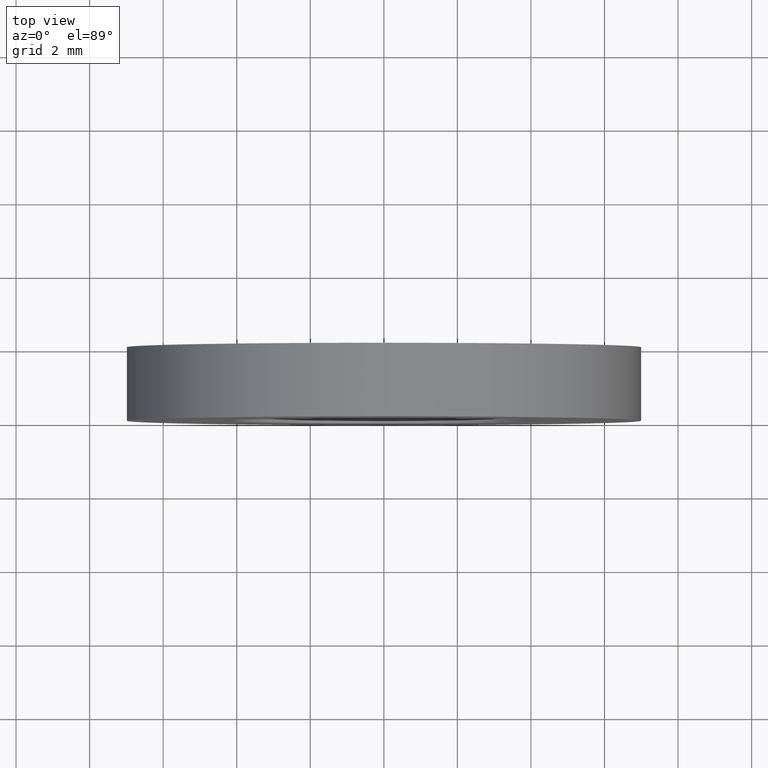
[diagram: clean part render]
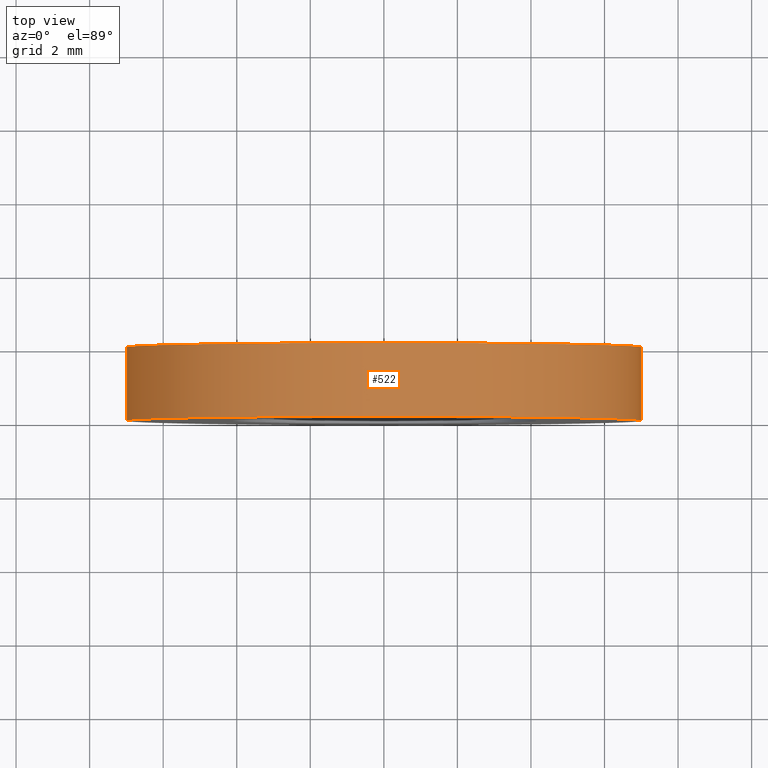
[diagram: same view with one face highlighted and labeled with its STEP entity id]
A machine part, top view. The second image highlights one B-rep face of the part: STEP entity #522.
In plain terms, the highlighted face is a freeform B-spline surface patch.
Its self-contained STEP definition (entity closure, byte-faithful):
#420=CARTESIAN_POINT('',(6.951066684545665,0.050000000000000,-0.826239642597310));
#421=CARTESIAN_POINT('',(6.974713308140240,0.050000000000000,-0.627303100465844));
#422=CARTESIAN_POINT('',(6.986943588953067,0.050000000000000,-0.427339776743999));
#423=CARTESIAN_POINT('',(7.414283365697066,0.050000000000000,6.559603812209068));
#424=CARTESIAN_POINT('',(0.427339776743999,0.050000000000000,6.986943588953067));
#425=CARTESIAN_POINT('',(-6.559603812209068,0.050000000000000,7.414283365697066));
#426=CARTESIAN_POINT('',(-6.986943588953067,0.050000000000000,0.427339776743999));
#427=CARTESIAN_POINT('',(6.951066684545665,-2.051250000000001,-0.826239642597310));
#428=CARTESIAN_POINT('',(6.974713308140240,-2.051250000000000,-0.627303100465844));
#429=CARTESIAN_POINT('',(6.986943588953067,-2.051250000000000,-0.427339776743999));
#430=CARTESIAN_POINT('',(7.414283365697066,-2.051250000000001,6.559603812209068));
#431=CARTESIAN_POINT('',(0.427339776743999,-2.051250000000000,6.986943588953067));
#432=CARTESIAN_POINT('',(-6.559603812209068,-2.051250000000001,7.414283365697066));
#433=CARTESIAN_POINT('',(-6.986943588953067,-2.051250000000000,0.427339776743999));
#441=(BOUNDED_SURFACE()B_SPLINE_SURFACE(2,1,((#420,#427),(#421,#428),(#422,#429),(#423,#430),(#424,#431),(#425,#432),(#426,#433)),.UNSPECIFIED.,.F.,.F.,.U.)B_SPLINE_SURFACE_WITH_KNOTS((3,2,2,3),(2,2),(0.0,0.463919189857867,12.061898936304530,23.659878682751181),(0.0,2.101250000000000),.UNSPECIFIED.)GEOMETRIC_REPRESENTATION_ITEM()RATIONAL_B_SPLINE_SURFACE(((0.977505800795127,0.977505800795127),(0.988284271247462,0.988284271247462),(1.0,1.0),(0.707106781186548,0.707106781186548),(1.0,1.0),(0.707106781186548,0.707106781186548),(1.0,1.0)))REPRESENTATION_ITEM('')SURFACE());
#442=CARTESIAN_POINT('',(6.951067210534475,-2.395768E-014,-0.826235217485072));
#443=VERTEX_POINT('',#442);
#444=CARTESIAN_POINT('',(0.0,0.0,7.0));
#445=VERTEX_POINT('',#444);
#446=CARTESIAN_POINT('',(6.951067210534475,-2.395768E-014,-0.826235217485072));
#447=CARTESIAN_POINT('',(7.0,0.0,-0.414566601616603));
#448=CARTESIAN_POINT('',(7.0,0.0,-2.795203E-016));
#449=CARTESIAN_POINT('',(6.999999999999999,0.0,6.999999999999999));
#450=CARTESIAN_POINT('',(0.0,0.0,7.0));
#458=(BOUNDED_CURVE()B_SPLINE_CURVE(2,(#446,#447,#448,#449,#450),.UNSPECIFIED.,.F.,.U.)B_SPLINE_CURVE_WITH_KNOTS((3,2,3),(0.229562581104653,0.250000000000000,0.500000000000000),.UNSPECIFIED.)CURVE()GEOMETRIC_REPRESENTATION_ITEM()RATIONAL_B_SPLINE_CURVE((0.956026965066855,0.976056074382012,1.0,0.707106781186547,1.0))REPRESENTATION_ITEM(''));
#459=EDGE_CURVE('',#443,#445,#458,.T.);
#460=ORIENTED_EDGE('',*,*,#459,.T.);
#461=CARTESIAN_POINT('',(-6.986943741830073,-1.567496E-014,0.427337277212387));
#462=VERTEX_POINT('',#461);
#463=CARTESIAN_POINT('',(0.0,0.0,7.0));
#464=CARTESIAN_POINT('',(-6.584944828460751,0.0,6.999999999999998));
#465=CARTESIAN_POINT('',(-6.986943741830074,-1.567496E-014,0.427337277212387));
#473=(BOUNDED_CURVE()B_SPLINE_CURVE(2,(#463,#464,#465),.UNSPECIFIED.,.F.,.U.)B_SPLINE_CURVE_WITH_KNOTS((3,3),(0.500000000000000,0.739333023969413),.UNSPECIFIED.)CURVE()GEOMETRIC_REPRESENTATION_ITEM()RATIONAL_B_SPLINE_CURVE((1.0,0.719603920964966,0.976072173966902))REPRESENTATION_ITEM(''));
#474=EDGE_CURVE('',#445,#462,#473,.T.);
#475=ORIENTED_EDGE('',*,*,#474,.T.);
#476=CARTESIAN_POINT('',(-6.986943739989564,-2.0,0.427337307304794));
#477=VERTEX_POINT('',#476);
#478=CARTESIAN_POINT('',(-6.986943741830073,-1.567496E-014,0.427337277212387));
#479=CARTESIAN_POINT('',(-6.986943739989564,-2.0,0.427337307304794));
#480=QUASI_UNIFORM_CURVE('',1,(#478,#479),.UNSPECIFIED.,.F.,.U.);
#481=EDGE_CURVE('',#462,#477,#480,.T.);
#482=ORIENTED_EDGE('',*,*,#481,.T.);
#483=CARTESIAN_POINT('',(0.0,-2.0,7.0));
#484=VERTEX_POINT('',#483);
#485=CARTESIAN_POINT('',(0.0,-2.0,7.0));
#486=CARTESIAN_POINT('',(-6.584944800046739,-2.0,6.999999999999999));
#487=CARTESIAN_POINT('',(-6.986943739989564,-2.0,0.427337307304794));
#495=(BOUNDED_CURVE()B_SPLINE_CURVE(2,(#485,#486,#487),.UNSPECIFIED.,.F.,.U.)B_SPLINE_CURVE_WITH_KNOTS((3,3),(0.500000000000000,0.739333023226263),.UNSPECIFIED.)CURVE()GEOMETRIC_REPRESENTATION_ITEM()RATIONAL_B_SPLINE_CURVE((1.0,0.719603921835620,0.976072172374189))REPRESENTATION_ITEM(''));
#496=EDGE_CURVE('',#484,#477,#495,.T.);
#497=ORIENTED_EDGE('',*,*,#496,.F.);
#498=CARTESIAN_POINT('',(6.951067204199181,-2.0,-0.826235270783800));
#499=VERTEX_POINT('',#498);
#500=CARTESIAN_POINT('',(6.951067204199181,-2.000000000000000,-0.826235270783800));
#501=CARTESIAN_POINT('',(7.0,-2.000000000000000,-0.414566628547696));
#502=CARTESIAN_POINT('',(7.0,-2.0,-2.795203E-016));
#503=CARTESIAN_POINT('',(6.999999999999999,-2.0,6.999999999999999));
#504=CARTESIAN_POINT('',(0.0,-2.0,7.0));
#512=(BOUNDED_CURVE()B_SPLINE_CURVE(2,(#500,#501,#502,#503,#504),.UNSPECIFIED.,.F.,.U.)B_SPLINE_CURVE_WITH_KNOTS((3,2,3),(0.229562579808786,0.250000000000000,0.500000000000000),.UNSPECIFIED.)CURVE()GEOMETRIC_REPRESENTATION_ITEM()RATIONAL_B_SPLINE_CURVE((0.956026962526900,0.976056072863809,1.0,0.707106781186547,1.0))REPRESENTATION_ITEM(''));
#513=EDGE_CURVE('',#499,#484,#512,.T.);
#514=ORIENTED_EDGE('',*,*,#513,.F.);
#515=CARTESIAN_POINT('',(6.951067210534475,-2.395768E-014,-0.826235217485072));
#516=CARTESIAN_POINT('',(6.951067204199181,-2.0,-0.826235270783800));
#517=QUASI_UNIFORM_CURVE('',1,(#515,#516),.UNSPECIFIED.,.F.,.U.);
#518=EDGE_CURVE('',#443,#499,#517,.T.);
#519=ORIENTED_EDGE('',*,*,#518,.F.);
#520=EDGE_LOOP('',(#460,#475,#482,#497,#514,#519));
#521=FACE_OUTER_BOUND('',#520,.T.);
#522=ADVANCED_FACE('',(#521),#441,.T.);